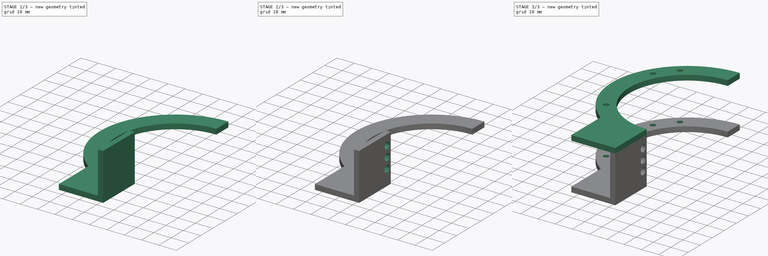
[diagram: build sequence overview — one tinted view per stage of 3, left to right]
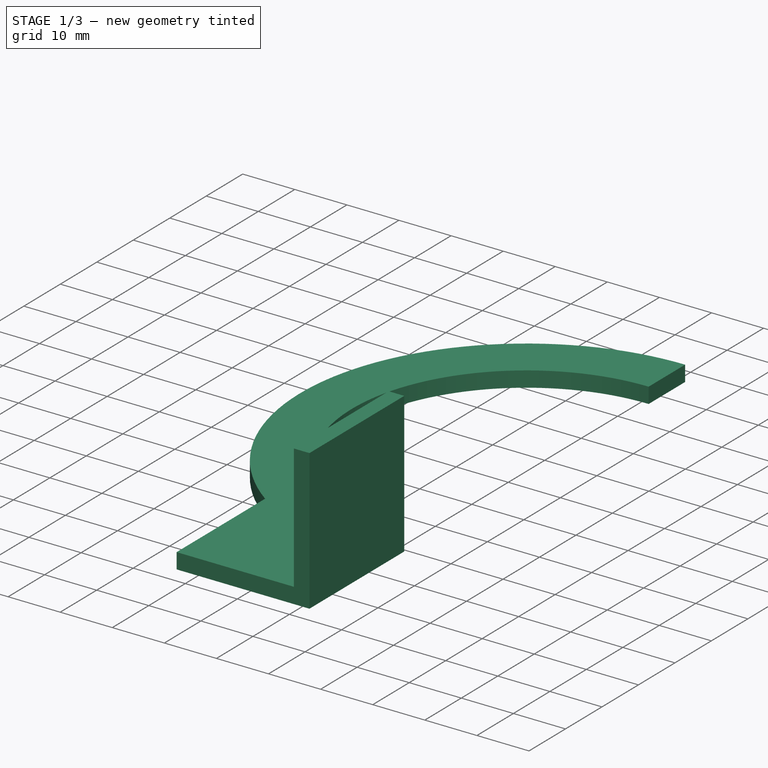
[diagram: stage 1 of 3 — iso view after this stage's code; geometry added in this stage tinted green]
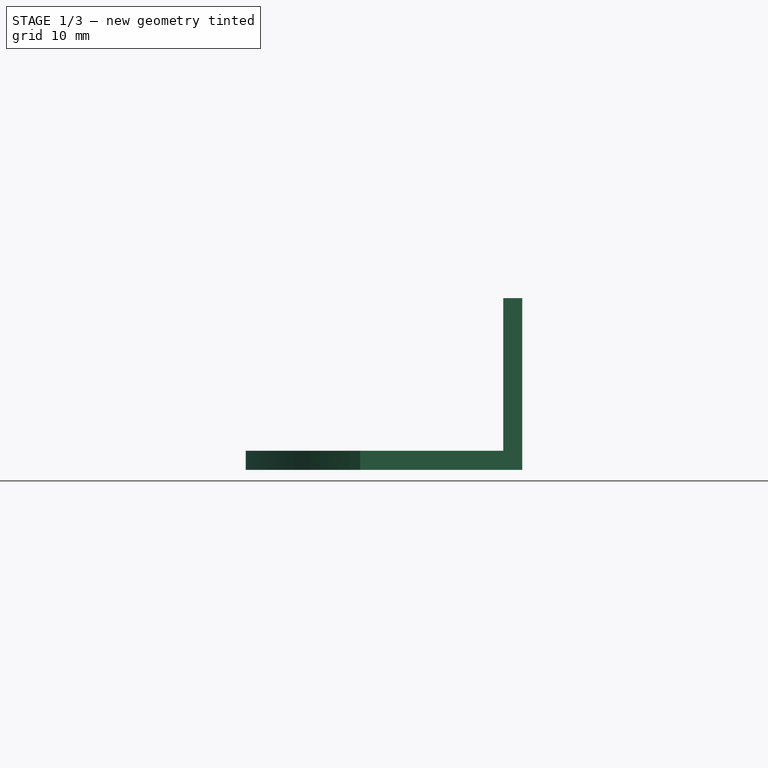
[diagram: stage 1 of 3 — front view after this stage's code; geometry added in this stage tinted green]
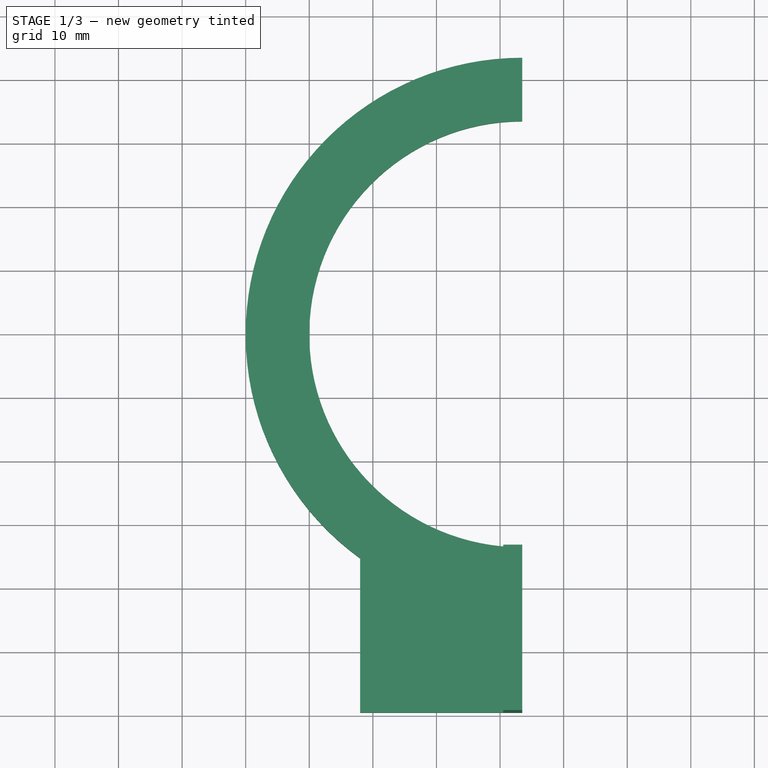
[diagram: stage 1 of 3 — top view after this stage's code; geometry added in this stage tinted green]
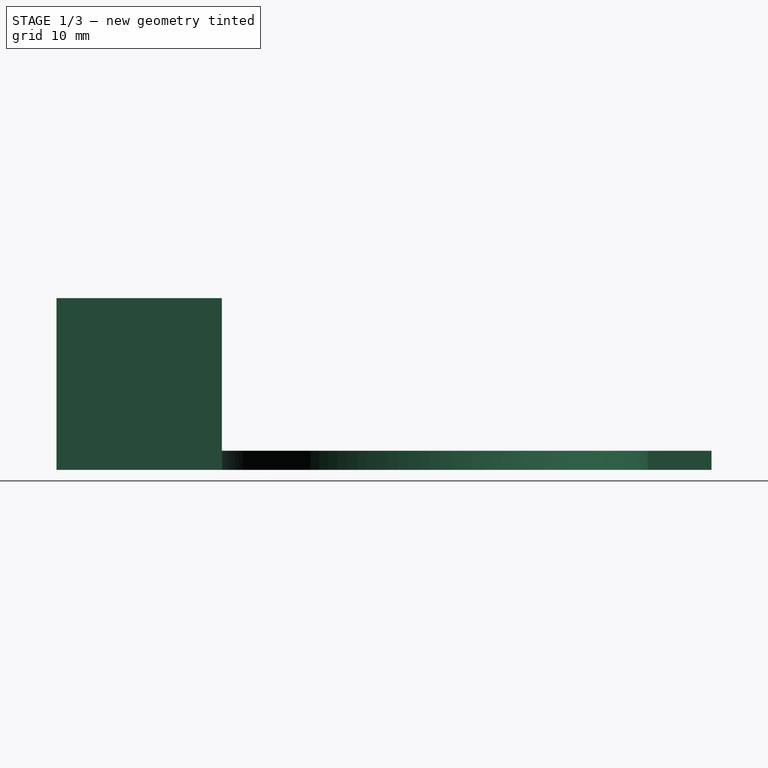
[diagram: stage 1 of 3 — right view after this stage's code; geometry added in this stage tinted green]
FCSTD DOCUMENT  (FreeCAD 0.16R6707 (Git))
Label: pince gauche
License: All rights reserved
LicenseURL: http://en.wikipedia.org/wiki/All_rights_reserved
objects: Sketcher::SketchObject×5, PartDesign::Pad×3, PartDesign::Pocket×2
note: 15 computed .brp shape members not serialized (recipe doc carries the construction recipe); baked Part::Feature solids carry a one-line shape summary decoded from their .brp

FEATURE [Sketcher::SketchObject] Sketch
  sketch-geometry (11):
    g0: GeomPoint [constr] X=33.5 Y=0 Z=0
    g1: GeomPoint [constr] X=33.5 Y=33.5 Z=0
    g2: GeomPoint [constr] X=33.5 Y=-33.5 Z=0
    g3: GeomPoint [constr] X=33.5 Y=43.5 Z=0
    g4: ArcOfCircle CenterX=33.5 CenterY=0 CenterZ=0 NormalX=0 NormalY=0 NormalZ=1 Radius=33.5 StartAngle=1.5708 EndAngle=4.71239
    g5: LineSegment StartX=33.5 StartY=33.5 StartZ=0 EndX=33.5 EndY=43.5 EndZ=0
    g6: GeomPoint [constr] X=-10 Y=0 Z=0
    g7: LineSegment StartX=33.5 StartY=-33.5 StartZ=0 EndX=33.5 EndY=-59.5 EndZ=0
    g8: LineSegment StartX=33.5 StartY=-59.5 StartZ=0 EndX=8 EndY=-59.5 EndZ=0
    g9: ArcOfCircle CenterX=33.5 CenterY=0 CenterZ=0 NormalX=0 NormalY=0 NormalZ=1 Radius=43.5 StartAngle=1.5708 EndAngle=4.08602
    g10: LineSegment StartX=8 StartY=-59.5 StartZ=0 EndX=8 EndY=-35.242 EndZ=0
  constraints (25):
    c: DistanceX(g0) = 33.5
    c: DistanceY(g1) = 33.5
    c: DistanceX(g1) = 33.5
    c: DistanceX(g2) = 33.5
    c: DistanceY(g2) = -33.5
    c: Coincident(g4,g0)
    c: Coincident(g4,g1)
    c: Coincident(g4,g2)
    c: DistanceX(g3) = 33.5
    c: DistanceY(g3) = 43.5
    c: Coincident(g5,g1)
    c: Coincident(g5,g3)
    c: PointOnObject(g6,g-1)
    c: DistanceX(g6) = -10
    c: Coincident(g7,g2)
    c: Vertical(g7)
    c: Distance(g7) = 26
    c: Coincident(g8,g7)
    c: Horizontal(g8)
    c: Distance(g8) = 25.5
    c: Coincident(g9,g0)
    c: Coincident(g9,g3)
    c: Coincident(g10,g8)
    c: Coincident(g10,g9)
    c: Vertical(g10)
FEATURE [PartDesign::Pad] Pad
  Length = 3
  Length2 = 100
  Sketch = -> Sketch
  Type = 0
FEATURE [Sketcher::SketchObject] Sketch001
  Placement = pos=(0,0,3) rot=(0,0,1;0rad)
  Support = -> Pad [Face8]
  sketch-geometry (5):
    g0: GeomPoint [constr] X=33.5 Y=-33.5 Z=0
    g1: LineSegment StartX=33.5 StartY=-33.5 StartZ=0 EndX=30.5 EndY=-33.5 EndZ=0
    g2: LineSegment StartX=30.5 StartY=-33.5 StartZ=0 EndX=30.5 EndY=-59.5 EndZ=0
    g3: LineSegment StartX=30.5 StartY=-59.5 StartZ=0 EndX=33.5 EndY=-59.5 EndZ=0
    g4: LineSegment StartX=33.5 StartY=-59.5 StartZ=0 EndX=33.5 EndY=-33.5 EndZ=0
  constraints (13):
    c: DistanceX(g0) = 33.5
    c: DistanceY(g0) = -33.5
    c: Coincident(g1,g2)
    c: Coincident(g2,g3)
    c: Coincident(g3,g4)
    c: Coincident(g4,g1)
    c: Horizontal(g1)
    c: Horizontal(g3)
    c: Vertical(g2)
    c: Vertical(g4)
    c: Coincident(g1,g0)
    c: Distance(g2) = 26
    c: Distance(g3) = 3
FEATURE [PartDesign::Pad] Pad001
  Length = 24
  Length2 = 100
  Sketch = -> Sketch001
  Type = 0
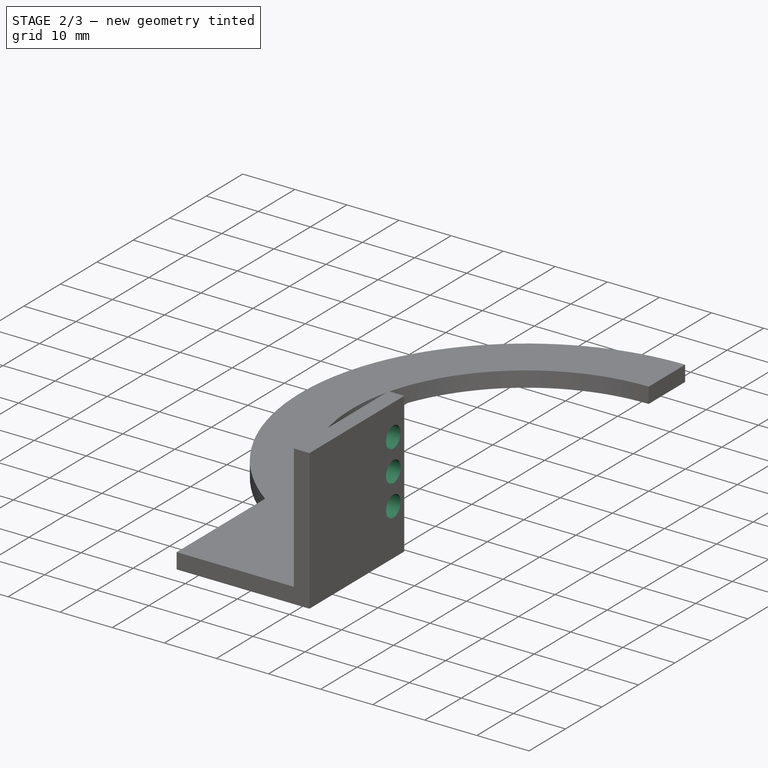
[diagram: stage 2 of 3 — iso view after this stage's code; geometry added in this stage tinted green]
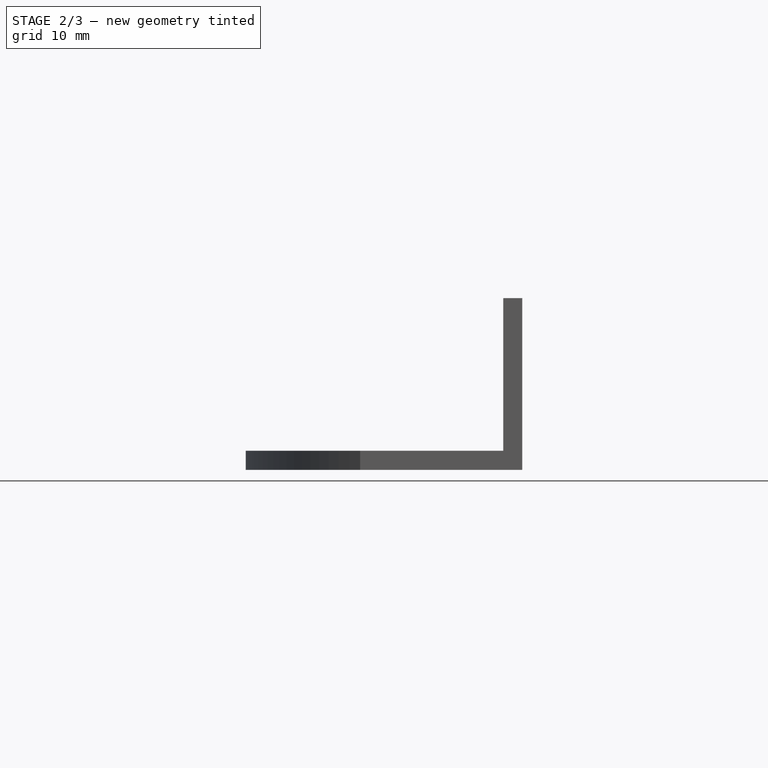
[diagram: stage 2 of 3 — front view after this stage's code; geometry added in this stage tinted green]
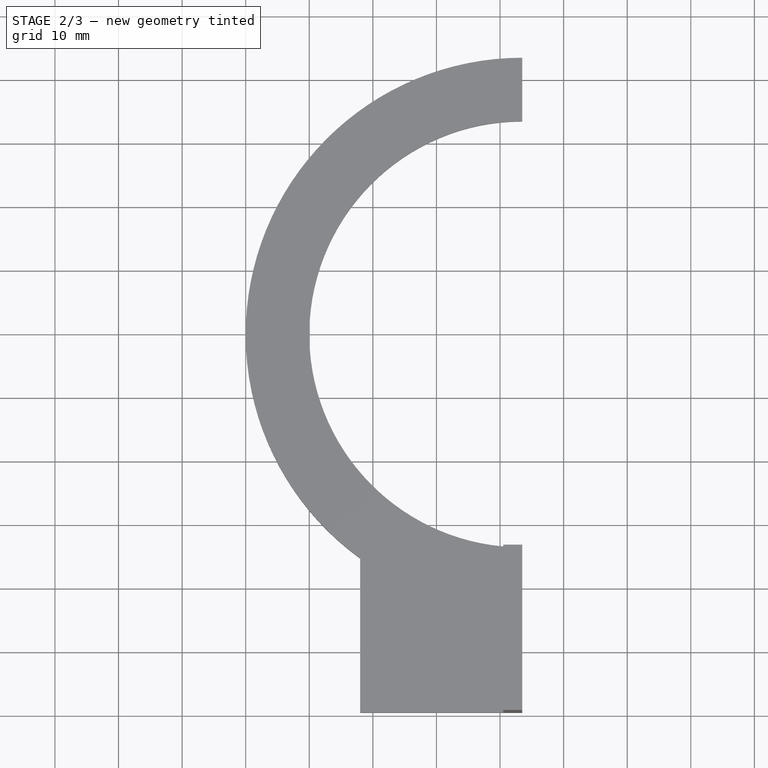
[diagram: stage 2 of 3 — top view after this stage's code; geometry added in this stage tinted green]
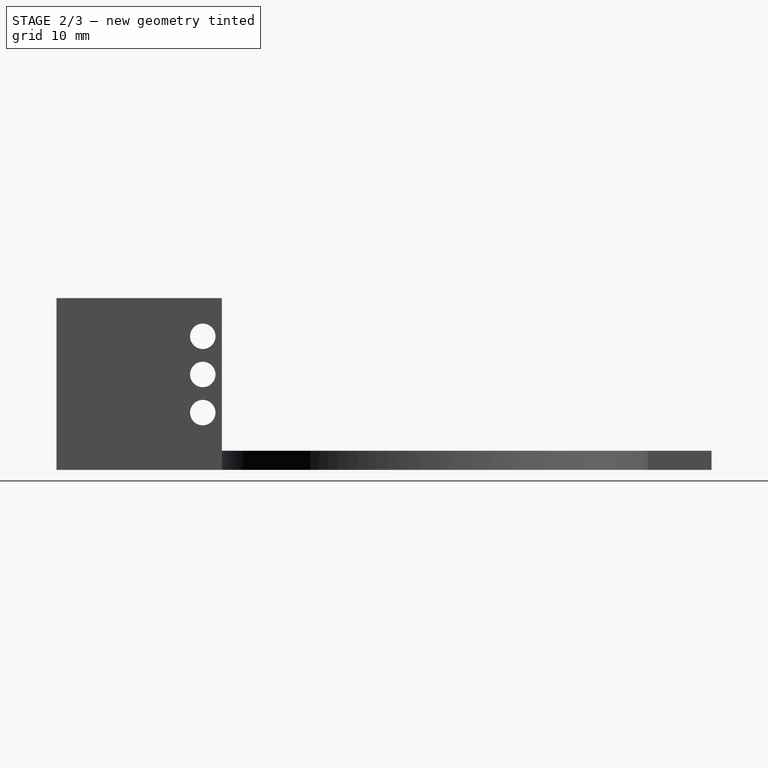
[diagram: stage 2 of 3 — right view after this stage's code; geometry added in this stage tinted green]
FEATURE [Sketcher::SketchObject] Sketch002
  Placement = pos=(33.5,0,0) rot=(0.57735,0.57735,0.57735;2.0944rad)
  Support = -> Pad001 [Face11]
  sketch-geometry (6):
    g0: GeomPoint [constr] X=-36.5 Y=9 Z=0
    g1: GeomPoint [constr] X=-36.5 Y=15 Z=0
    g2: GeomPoint [constr] X=-36.5 Y=21 Z=0
    g3: Circle CenterX=-36.5 CenterY=21 CenterZ=0 NormalX=0 NormalY=0 NormalZ=1 Radius=2
    g4: Circle CenterX=-36.5 CenterY=15 CenterZ=0 NormalX=0 NormalY=0 NormalZ=1 Radius=2
    g5: Circle CenterX=-36.5 CenterY=9 CenterZ=0 NormalX=0 NormalY=0 NormalZ=1 Radius=2
  constraints (12):
    c: DistanceX(g2) = -36.5
    c: DistanceX(g1) = -36.5
    c: DistanceX(g0) = -36.5
    c: DistanceY(g0) = 9
    c: DistanceY(g1) = 15
    c: DistanceY(g2) = 21
    c: Coincident(g3,g2)
    c: Coincident(g4,g1)
    c: Coincident(g5,g0)
    c: Radius(g3) = 2
    c: Radius(g4) = 2
    c: Radius(g5) = 2
FEATURE [PartDesign::Pocket] Pocket
  Length = 3
  Sketch = -> Sketch002
  Type = 0
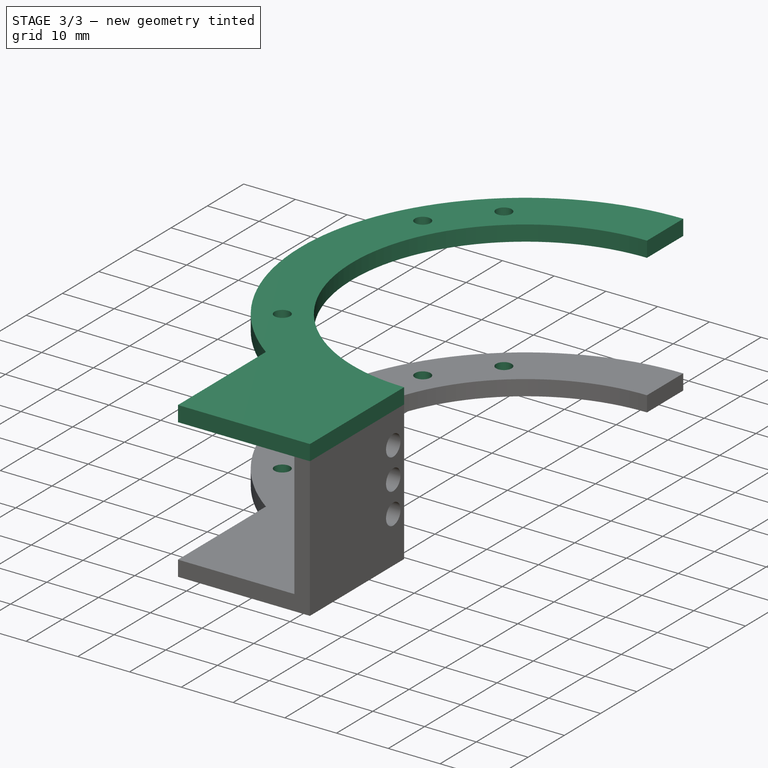
[diagram: stage 3 of 3 — iso view after this stage's code; geometry added in this stage tinted green]
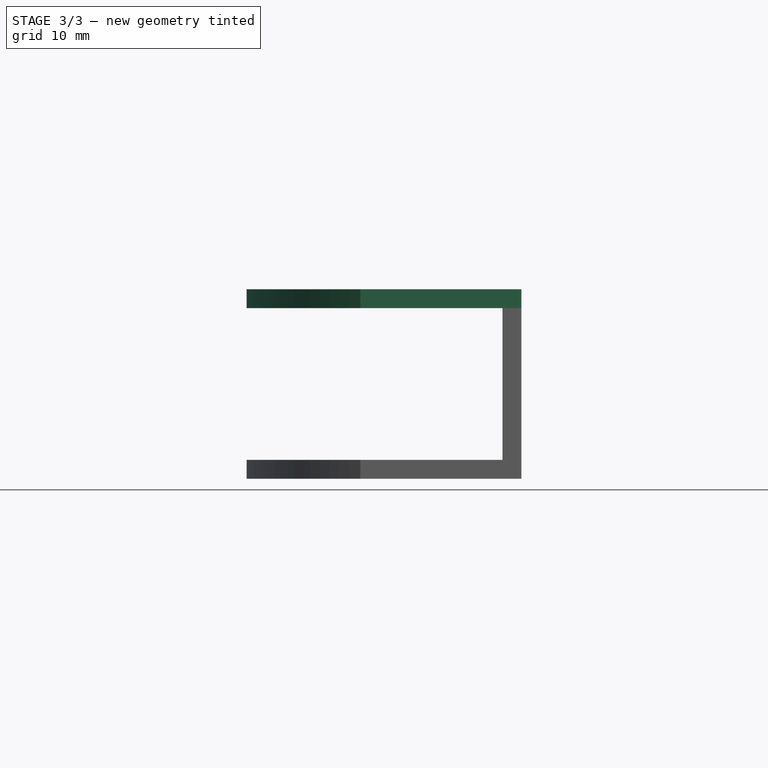
[diagram: stage 3 of 3 — front view after this stage's code; geometry added in this stage tinted green]
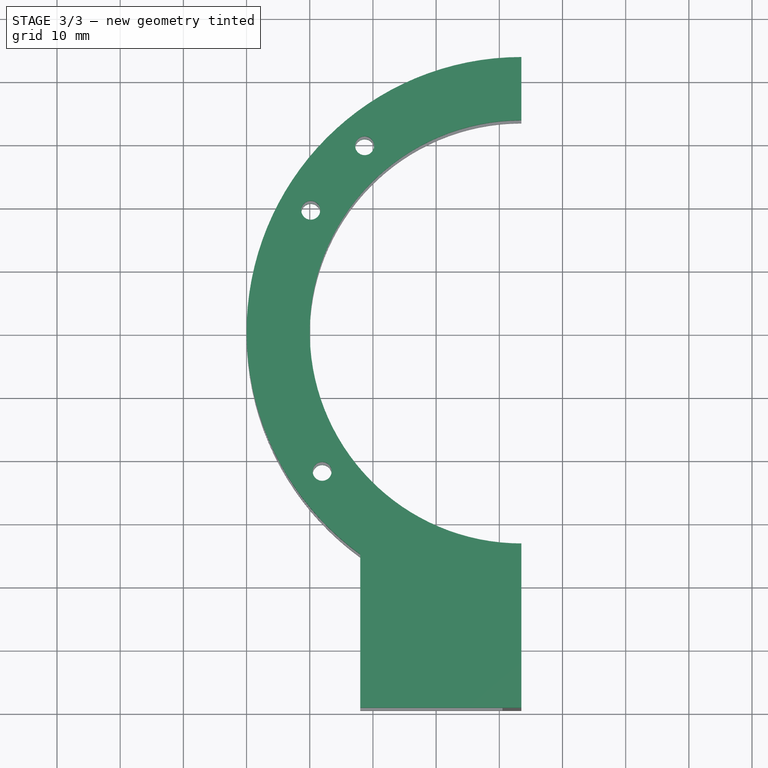
[diagram: stage 3 of 3 — top view after this stage's code; geometry added in this stage tinted green]
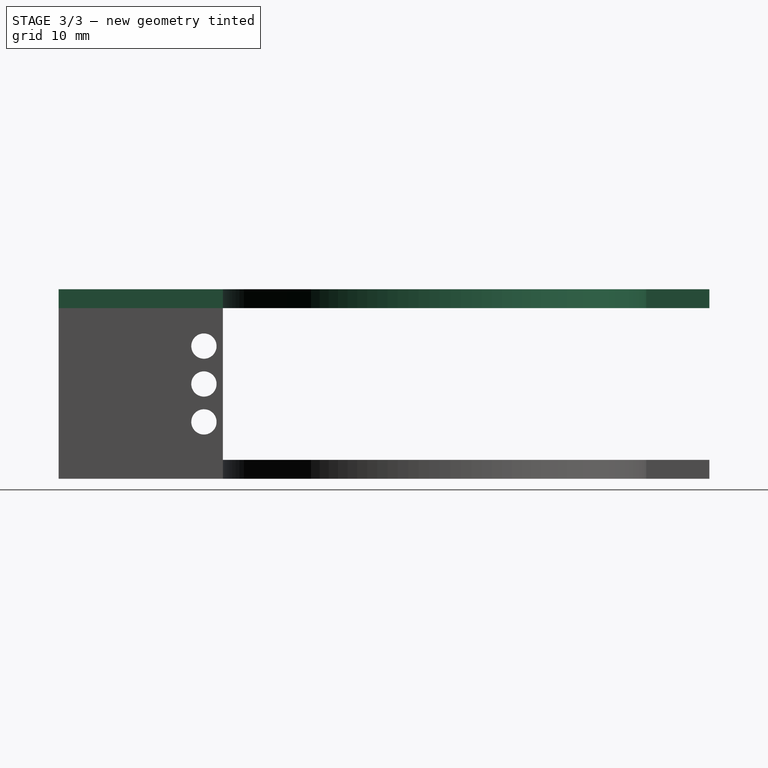
[diagram: stage 3 of 3 — right view after this stage's code; geometry added in this stage tinted green]
FEATURE [Sketcher::SketchObject] Sketch003
  Placement = pos=(0,0,27) rot=(0,0,1;0rad)
  Support = -> Pocket [Face13]
  sketch-geometry (12):
    g0: GeomPoint [constr] X=33.5 Y=0 Z=0
    g1: GeomPoint [constr] X=33.5 Y=-33.5 Z=0
    g2: GeomPoint [constr] X=33.5 Y=33.5 Z=0
    g3: GeomPoint [constr] X=33.5 Y=43.5 Z=0
    g4: GeomPoint [constr] X=33.5 Y=-59.5 Z=0
    g5: GeomPoint [constr] X=8 Y=-59.5 Z=0
    g6: LineSegment StartX=33.5 StartY=43.5 StartZ=0 EndX=33.5 EndY=33.5 EndZ=0
    g7: LineSegment StartX=8 StartY=-59.5 StartZ=0 EndX=33.5 EndY=-59.5 EndZ=0
    g8: LineSegment StartX=33.5 StartY=-33.5 StartZ=0 EndX=33.5 EndY=-59.5 EndZ=0
    g9: ArcOfCircle CenterX=33.5 CenterY=0 CenterZ=0 NormalX=0 NormalY=0 NormalZ=1 Radius=33.5 StartAngle=1.5708 EndAngle=4.71239
    g10: ArcOfCircle CenterX=33.5 CenterY=0 CenterZ=0 NormalX=0 NormalY=0 NormalZ=1 Radius=43.5 StartAngle=1.5708 EndAngle=4.08602
    g11: LineSegment StartX=8 StartY=-35.242 StartZ=0 EndX=8 EndY=-59.5 EndZ=0
  constraints (26):
    c: PointOnObject(g0,g-1)
    c: DistanceX(g0) = 33.5
    c: DistanceY(g0,g2) = 33.5
    c: DistanceX(g0,g2) = 0
    c: DistanceX(g1,g0) = 0
    c: DistanceY(g1,g0) = 33.5
    c: DistanceX(g2,g3) = 0
    c: DistanceY(g2,g3) = 10
    c: DistanceY(g4,g1) = 26
    c: DistanceX(g1,g4) = 0
    c: DistanceY(g5,g4) = 0
    c: DistanceX(g5,g4) = 25.5
    c: Coincident(g6,g3)
    c: Coincident(g6,g2)
    c: Coincident(g7,g5)
    c: Coincident(g7,g4)
    c: Coincident(g8,g1)
    c: Coincident(g8,g4)
    c: Coincident(g9,g0)
    c: Coincident(g9,g2)
    c: Coincident(g9,g1)
    c: Coincident(g10,g0)
    c: Coincident(g10,g3)
    c: Coincident(g11,g10)
    c: Coincident(g11,g5)
    c: Vertical(g11)
FEATURE [PartDesign::Pad] Pad002
  Length = 3
  Length2 = 100
  Sketch = -> Sketch003
  Type = 0
FEATURE [Sketcher::SketchObject] Sketch004
  Placement = pos=(0,0,0) rot=(1,0,0;3.14159rad)
  Support = -> Pad002 [Face4]
  sketch-geometry (6):
    g0: GeomPoint [constr] X=33.5 Y=0 Z=0
    g1: GeomPoint [constr] X=1.96265 Y=22.0827 Z=0
    g2: GeomPoint [constr] X=8.68646 Y=-29.464 Z=0
    g3: Circle CenterX=1.96265 CenterY=22.0827 CenterZ=0 NormalX=0 NormalY=0 NormalZ=1 Radius=1.5
    g4: Circle CenterX=8.68646 CenterY=-29.464 CenterZ=0 NormalX=0 NormalY=0 NormalZ=1 Radius=1.5
    g5: Circle CenterX=0.158022 CenterY=-19.25 CenterZ=0 NormalX=0 NormalY=0 NormalZ=1 Radius=1.5
  constraints (7):
    c: PointOnObject(g0,g-1)
    c: DistanceX(g-1,g0) = 33.5
    c: Coincident(g3,g1)
    c: Coincident(g4,g2)
    c: Radius(g3) = 1.5
    c: Radius(g4) = 1.5
    c: Radius(g5) = 1.5
FEATURE [PartDesign::Pocket] Pocket001
  Length = 5
  Sketch = -> Sketch004
  Type = 1
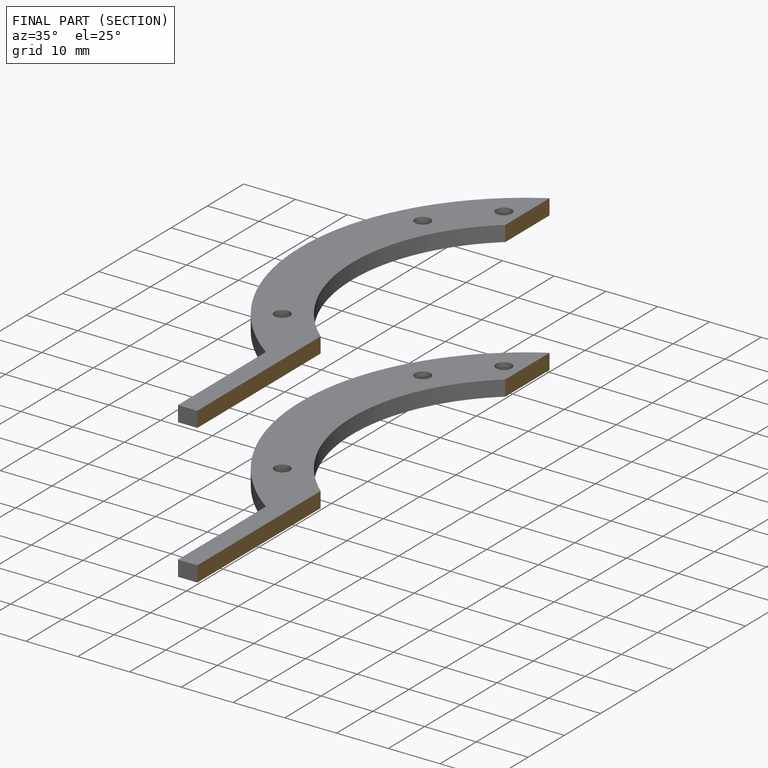
[diagram: finished part — half-section view (interior)]
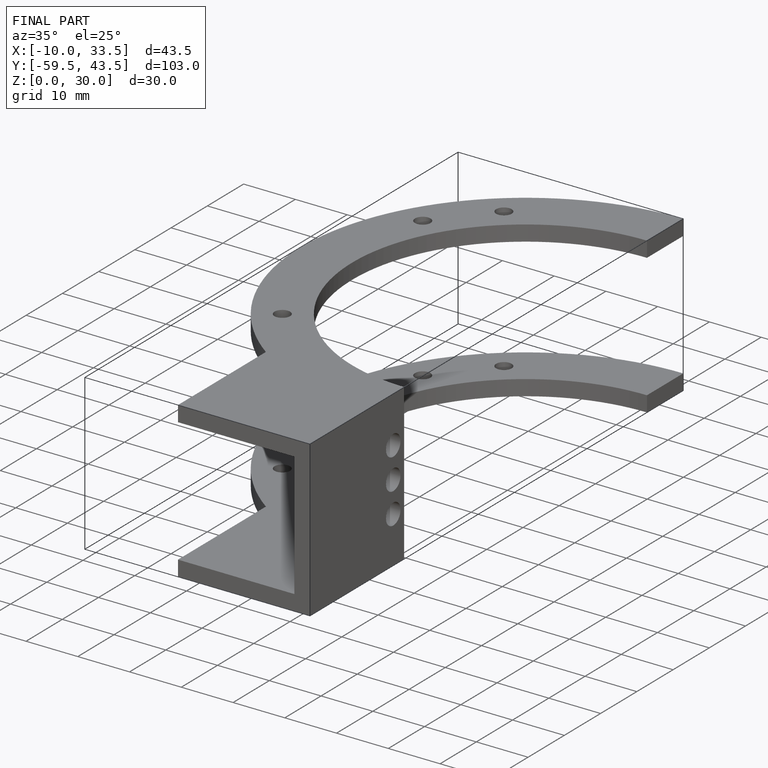
[diagram: finished part — iso view with bounding-box wireframe]
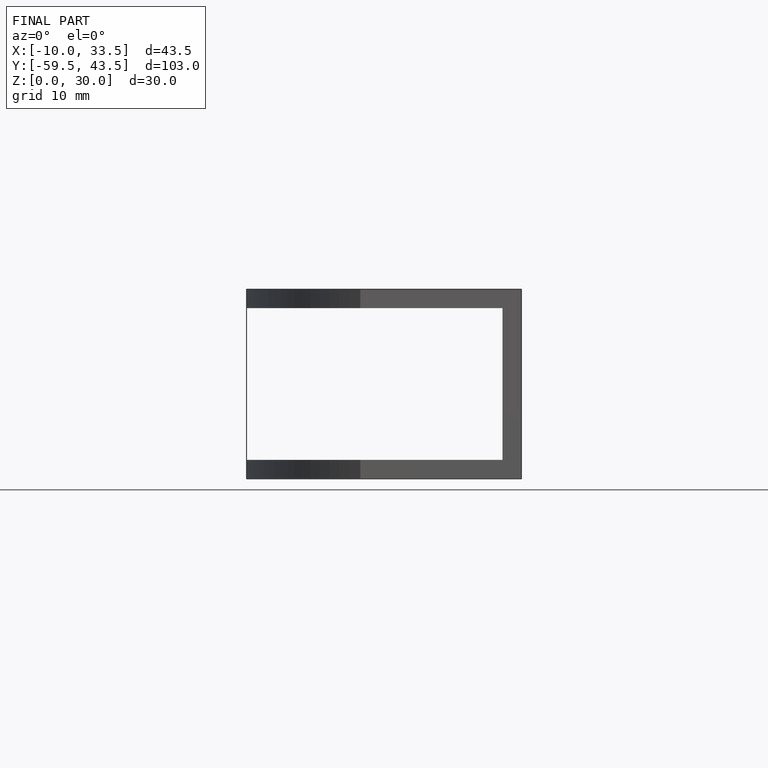
[diagram: finished part — front view with bounding-box wireframe]
